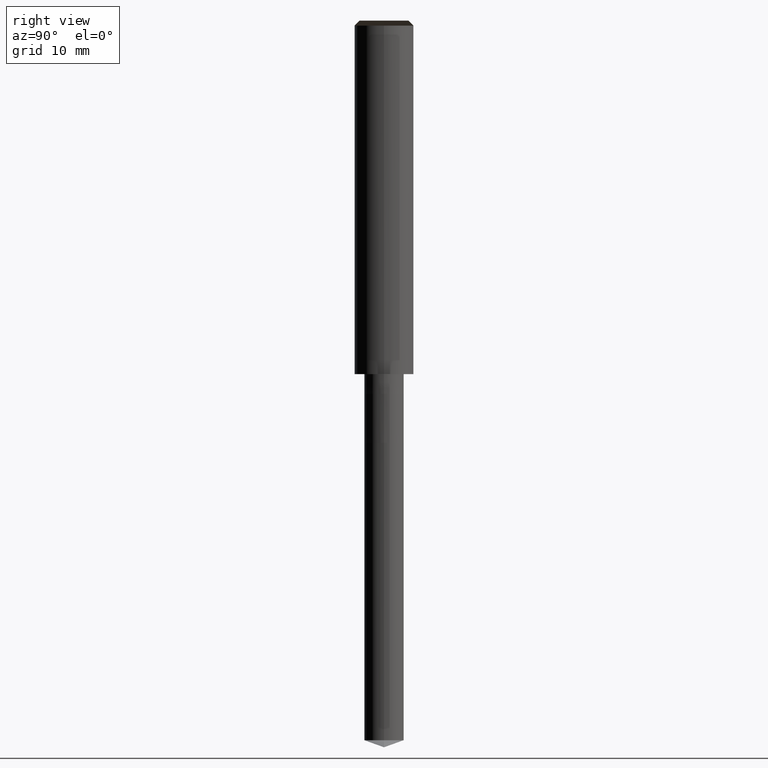
[diagram: clean part render]
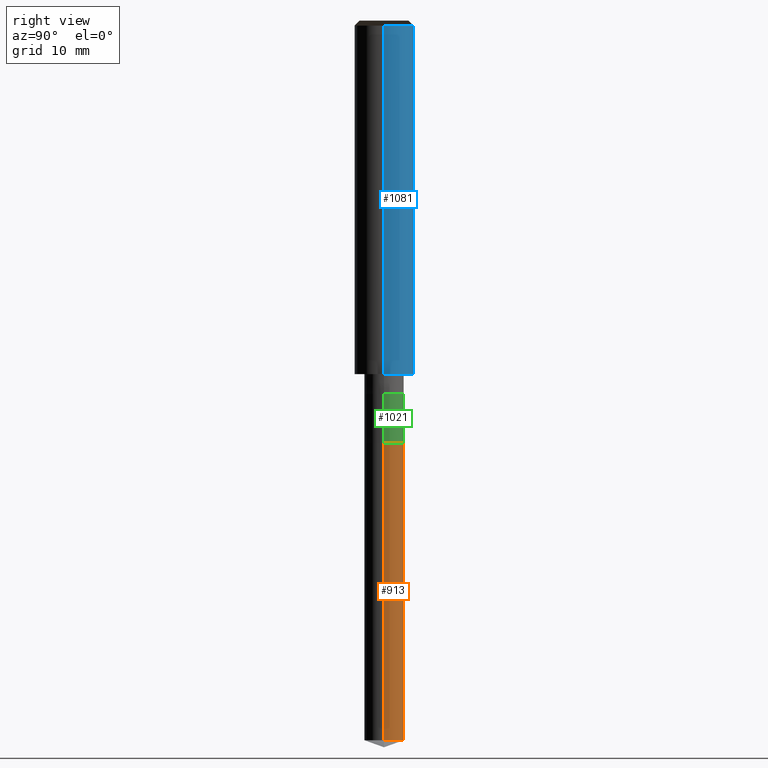
[diagram: same view with three faces highlighted in distinct colors, each labeled with its STEP entity id]
A machine part, right view with three faces highlighted in distinct colors.
Their STEP definitions:

[orange] entity #913 — the highlighted face is a freeform B-spline surface patch.
#815=CARTESIAN_POINT('',(2.0,0.0,-37.272059531468));
#816=CARTESIAN_POINT('',(2.0,2.0,-37.272059531468));
#817=CARTESIAN_POINT('',(0.0,2.0,-37.272059531468));
#818=CARTESIAN_POINT('',(-2.0,2.0,-37.272059531468));
#819=CARTESIAN_POINT('',(-2.0,0.0,-37.272059531468));
#820=CARTESIAN_POINT('',(2.0,0.0,-7.0));
#821=CARTESIAN_POINT('',(2.0,2.0,-7.0));
#822=CARTESIAN_POINT('',(0.0,2.0,-7.0));
#823=CARTESIAN_POINT('',(-2.0,2.0,-7.0));
#824=CARTESIAN_POINT('',(-2.0,0.0,-7.0));
#894=(
BOUNDED_SURFACE()
B_SPLINE_SURFACE(1,2,(
(#815,#816,#817,#818,#819),
(#820,#821,#822,#823,#824)
), .UNSPECIFIED.,.F.,.F.,.F.)
B_SPLINE_SURFACE_WITH_KNOTS((2,2),(3,2,3),(
0.0,1.0),(
0.0,0.5,1.0), .UNSPECIFIED.)
GEOMETRIC_REPRESENTATION_ITEM()
RATIONAL_B_SPLINE_SURFACE(((1.0,0.707106781187,1.0,0.707106781187,1.0),
(1.0,0.707106781187,1.0,0.707106781187,1.0)
))
REPRESENTATION_ITEM('')
SURFACE()
);
#895=(
BOUNDED_CURVE()
B_SPLINE_CURVE(2,(#819,#818,#817,#816,#815),.UNSPECIFIED.,.F.,.F.)
B_SPLINE_CURVE_WITH_KNOTS((3,2,3),
(0.0,0.5,1.0),.UNSPECIFIED.)
CURVE()
GEOMETRIC_REPRESENTATION_ITEM()
RATIONAL_B_SPLINE_CURVE((1.0,0.707106781187,1.0,0.707106781187,1.0))
REPRESENTATION_ITEM('')
);
#896=(
BOUNDED_CURVE()
B_SPLINE_CURVE(1,(#815,#820),.UNSPECIFIED.,.F.,.F.)
B_SPLINE_CURVE_WITH_KNOTS((2,2),
(0.0,1.0),.UNSPECIFIED.)
CURVE()
GEOMETRIC_REPRESENTATION_ITEM()
RATIONAL_B_SPLINE_CURVE((1.0,1.0))
REPRESENTATION_ITEM('')
);
#897=(
BOUNDED_CURVE()
B_SPLINE_CURVE(2,(#820,#821,#822,#823,#824),.UNSPECIFIED.,.F.,.F.)
B_SPLINE_CURVE_WITH_KNOTS((3,2,3),
(0.0,0.5,1.0),.UNSPECIFIED.)
CURVE()
GEOMETRIC_REPRESENTATION_ITEM()
RATIONAL_B_SPLINE_CURVE((1.0,0.707106781187,1.0,0.707106781187,1.0))
REPRESENTATION_ITEM('')
);
#898=(
BOUNDED_CURVE()
B_SPLINE_CURVE(1,(#824,#819),.UNSPECIFIED.,.F.,.F.)
B_SPLINE_CURVE_WITH_KNOTS((2,2),
(0.0,1.0),.UNSPECIFIED.)
CURVE()
GEOMETRIC_REPRESENTATION_ITEM()
RATIONAL_B_SPLINE_CURVE((1.0,1.0))
REPRESENTATION_ITEM('')
);
#899=VERTEX_POINT('',#815);
#900=VERTEX_POINT('',#819);
#901=VERTEX_POINT('',#820);
#902=VERTEX_POINT('',#824);
#903=EDGE_CURVE('',#900,#899,#895,.T.);
#904=EDGE_CURVE('',#899,#901,#896,.T.);
#905=EDGE_CURVE('',#901,#902,#897,.T.);
#906=EDGE_CURVE('',#902,#900,#898,.T.);
#907=ORIENTED_EDGE('',*,*,#903,.T.);
#908=ORIENTED_EDGE('',*,*,#904,.T.);
#909=ORIENTED_EDGE('',*,*,#905,.T.);
#910=ORIENTED_EDGE('',*,*,#906,.T.);
#911=EDGE_LOOP('',(#907,#908,#909,#910));
#912=FACE_OUTER_BOUND('',#911,.T.);
#913=ADVANCED_FACE('',(#912),#894,.T.);

[blue] entity #1081 — the highlighted face is a freeform B-spline surface patch.
#842=CARTESIAN_POINT('',(3.0,0.0,0.0));
#843=CARTESIAN_POINT('',(3.0,3.0,0.0));
#844=CARTESIAN_POINT('',(0.0,3.0,0.0));
#845=CARTESIAN_POINT('',(-3.0,3.0,0.0));
#846=CARTESIAN_POINT('',(-3.0,0.0,0.0));
#847=CARTESIAN_POINT('',(3.0,0.0,35.5));
#848=CARTESIAN_POINT('',(3.0,3.0,35.5));
#849=CARTESIAN_POINT('',(0.0,3.0,35.5));
#850=CARTESIAN_POINT('',(-3.0,3.0,35.5));
#851=CARTESIAN_POINT('',(-3.0,0.0,35.5));
#1062=(
BOUNDED_SURFACE()
B_SPLINE_SURFACE(1,2,(
(#842,#843,#844,#845,#846),
(#847,#848,#849,#850,#851)
), .UNSPECIFIED.,.F.,.F.,.F.)
B_SPLINE_SURFACE_WITH_KNOTS((2,2),(3,2,3),(
0.0,1.0),(
0.0,0.5,1.0), .UNSPECIFIED.)
GEOMETRIC_REPRESENTATION_ITEM()
RATIONAL_B_SPLINE_SURFACE(((1.0,0.707106781187,1.0,0.707106781187,1.0),
(1.0,0.707106781187,1.0,0.707106781187,1.0)
))
REPRESENTATION_ITEM('')
SURFACE()
);
#1063=(
BOUNDED_CURVE()
B_SPLINE_CURVE(2,(#846,#845,#844,#843,#842),.UNSPECIFIED.,.F.,.F.)
B_SPLINE_CURVE_WITH_KNOTS((3,2,3),
(0.0,0.5,1.0),.UNSPECIFIED.)
CURVE()
GEOMETRIC_REPRESENTATION_ITEM()
RATIONAL_B_SPLINE_CURVE((1.0,0.707106781187,1.0,0.707106781187,1.0))
REPRESENTATION_ITEM('')
);
#1064=(
BOUNDED_CURVE()
B_SPLINE_CURVE(1,(#842,#847),.UNSPECIFIED.,.F.,.F.)
B_SPLINE_CURVE_WITH_KNOTS((2,2),
(0.0,1.0),.UNSPECIFIED.)
CURVE()
GEOMETRIC_REPRESENTATION_ITEM()
RATIONAL_B_SPLINE_CURVE((1.0,1.0))
REPRESENTATION_ITEM('')
);
#1065=(
BOUNDED_CURVE()
B_SPLINE_CURVE(2,(#847,#848,#849,#850,#851),.UNSPECIFIED.,.F.,.F.)
B_SPLINE_CURVE_WITH_KNOTS((3,2,3),
(0.0,0.5,1.0),.UNSPECIFIED.)
CURVE()
GEOMETRIC_REPRESENTATION_ITEM()
RATIONAL_B_SPLINE_CURVE((1.0,0.707106781187,1.0,0.707106781187,1.0))
REPRESENTATION_ITEM('')
);
#1066=(
BOUNDED_CURVE()
B_SPLINE_CURVE(1,(#851,#846),.UNSPECIFIED.,.F.,.F.)
B_SPLINE_CURVE_WITH_KNOTS((2,2),
(0.0,1.0),.UNSPECIFIED.)
CURVE()
GEOMETRIC_REPRESENTATION_ITEM()
RATIONAL_B_SPLINE_CURVE((1.0,1.0))
REPRESENTATION_ITEM('')
);
#1067=VERTEX_POINT('',#842);
#1068=VERTEX_POINT('',#846);
#1069=VERTEX_POINT('',#847);
#1070=VERTEX_POINT('',#851);
#1071=EDGE_CURVE('',#1068,#1067,#1063,.T.);
#1072=EDGE_CURVE('',#1067,#1069,#1064,.T.);
#1073=EDGE_CURVE('',#1069,#1070,#1065,.T.);
#1074=EDGE_CURVE('',#1070,#1068,#1066,.T.);
#1075=ORIENTED_EDGE('',*,*,#1071,.T.);
#1076=ORIENTED_EDGE('',*,*,#1072,.T.);
#1077=ORIENTED_EDGE('',*,*,#1073,.T.);
#1078=ORIENTED_EDGE('',*,*,#1074,.T.);
#1079=EDGE_LOOP('',(#1075,#1076,#1077,#1078));
#1080=FACE_OUTER_BOUND('',#1079,.T.);
#1081=ADVANCED_FACE('',(#1080),#1062,.T.);

[green] entity #1021 — the highlighted face is a freeform B-spline surface patch.
#820=CARTESIAN_POINT('',(2.0,0.0,-7.0));
#821=CARTESIAN_POINT('',(2.0,2.0,-7.0));
#822=CARTESIAN_POINT('',(0.0,2.0,-7.0));
#823=CARTESIAN_POINT('',(-2.0,2.0,-7.0));
#824=CARTESIAN_POINT('',(-2.0,0.0,-7.0));
#832=CARTESIAN_POINT('',(2.0,0.0,-2.0));
#833=CARTESIAN_POINT('',(2.0,2.0,-2.0));
#834=CARTESIAN_POINT('',(0.0,2.0,-2.0));
#835=CARTESIAN_POINT('',(-2.0,2.0,-2.0));
#836=CARTESIAN_POINT('',(-2.0,0.0,-2.0));
#1002=(
BOUNDED_SURFACE()
B_SPLINE_SURFACE(1,2,(
(#820,#821,#822,#823,#824),
(#832,#833,#834,#835,#836)
), .UNSPECIFIED.,.F.,.F.,.F.)
B_SPLINE_SURFACE_WITH_KNOTS((2,2),(3,2,3),(
0.0,1.0),(
0.0,0.5,1.0), .UNSPECIFIED.)
GEOMETRIC_REPRESENTATION_ITEM()
RATIONAL_B_SPLINE_SURFACE(((1.0,0.707106781187,1.0,0.707106781187,1.0),
(1.0,0.707106781187,1.0,0.707106781187,1.0)
))
REPRESENTATION_ITEM('')
SURFACE()
);
#1003=(
BOUNDED_CURVE()
B_SPLINE_CURVE(2,(#824,#823,#822,#821,#820),.UNSPECIFIED.,.F.,.F.)
B_SPLINE_CURVE_WITH_KNOTS((3,2,3),
(0.0,0.5,1.0),.UNSPECIFIED.)
CURVE()
GEOMETRIC_REPRESENTATION_ITEM()
RATIONAL_B_SPLINE_CURVE((1.0,0.707106781187,1.0,0.707106781187,1.0))
REPRESENTATION_ITEM('')
);
#1004=(
BOUNDED_CURVE()
B_SPLINE_CURVE(1,(#820,#832),.UNSPECIFIED.,.F.,.F.)
B_SPLINE_CURVE_WITH_KNOTS((2,2),
(0.0,1.0),.UNSPECIFIED.)
CURVE()
GEOMETRIC_REPRESENTATION_ITEM()
RATIONAL_B_SPLINE_CURVE((1.0,1.0))
REPRESENTATION_ITEM('')
);
#1005=(
BOUNDED_CURVE()
B_SPLINE_CURVE(2,(#832,#833,#834,#835,#836),.UNSPECIFIED.,.F.,.F.)
B_SPLINE_CURVE_WITH_KNOTS((3,2,3),
(0.0,0.5,1.0),.UNSPECIFIED.)
CURVE()
GEOMETRIC_REPRESENTATION_ITEM()
RATIONAL_B_SPLINE_CURVE((1.0,0.707106781187,1.0,0.707106781187,1.0))
REPRESENTATION_ITEM('')
);
#1006=(
BOUNDED_CURVE()
B_SPLINE_CURVE(1,(#836,#824),.UNSPECIFIED.,.F.,.F.)
B_SPLINE_CURVE_WITH_KNOTS((2,2),
(0.0,1.0),.UNSPECIFIED.)
CURVE()
GEOMETRIC_REPRESENTATION_ITEM()
RATIONAL_B_SPLINE_CURVE((1.0,1.0))
REPRESENTATION_ITEM('')
);
#1007=VERTEX_POINT('',#820);
#1008=VERTEX_POINT('',#824);
#1009=VERTEX_POINT('',#832);
#1010=VERTEX_POINT('',#836);
#1011=EDGE_CURVE('',#1008,#1007,#1003,.T.);
#1012=EDGE_CURVE('',#1007,#1009,#1004,.T.);
#1013=EDGE_CURVE('',#1009,#1010,#1005,.T.);
#1014=EDGE_CURVE('',#1010,#1008,#1006,.T.);
#1015=ORIENTED_EDGE('',*,*,#1011,.T.);
#1016=ORIENTED_EDGE('',*,*,#1012,.T.);
#1017=ORIENTED_EDGE('',*,*,#1013,.T.);
#1018=ORIENTED_EDGE('',*,*,#1014,.T.);
#1019=EDGE_LOOP('',(#1015,#1016,#1017,#1018));
#1020=FACE_OUTER_BOUND('',#1019,.T.);
#1021=ADVANCED_FACE('',(#1020),#1002,.T.);